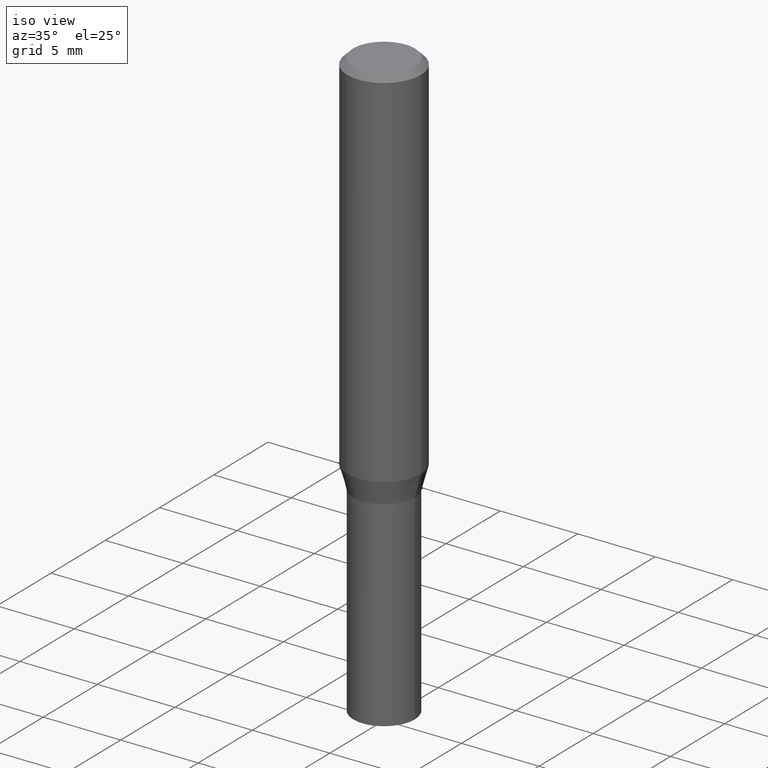
[diagram: clean part render]
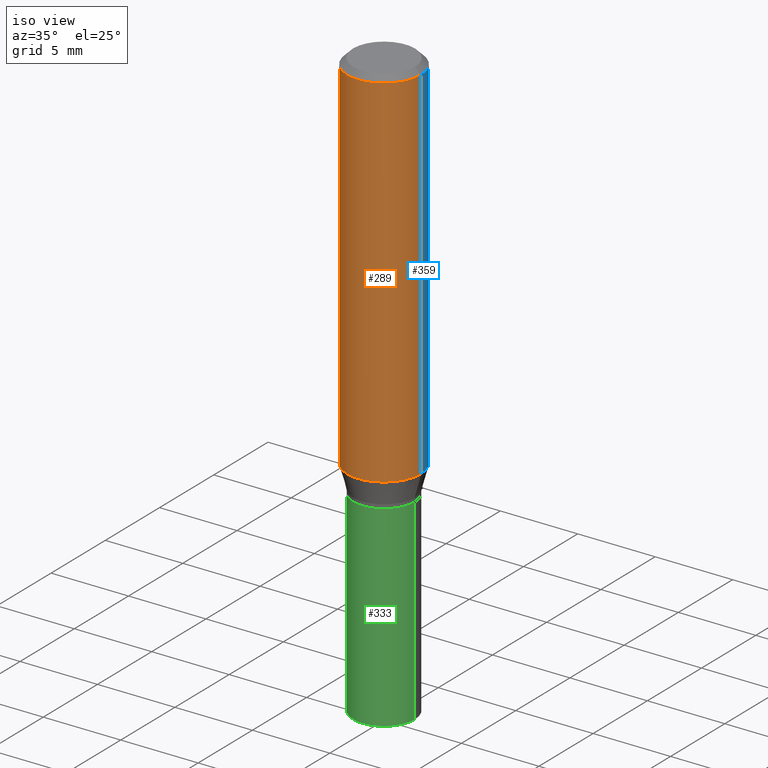
[diagram: same view with three faces highlighted in distinct colors, each labeled with its STEP entity id]
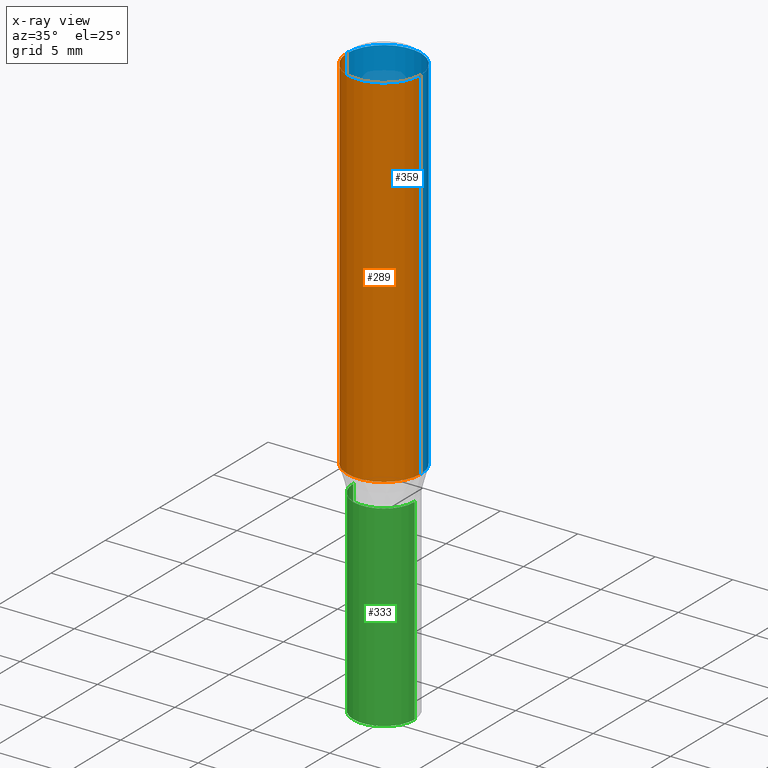
[diagram: x-ray of the same camera — body ghosted, the three highlighted faces saturated]
A machine part, iso view with three faces highlighted in distinct colors.
The next image is the same camera in x-ray (body ghosted, the three faces saturated) — at least one of them is partly hidden behind the body in this view.
Their STEP definitions:

[orange] entity #289 — the highlighted cylindrical surface (partial cylindrical patch) has radius 2.3813 mm, axis along (-0, 0, 1).
#49 = VERTEX_POINT ( 'NONE', #57 ) ;
#51 = ORIENTED_EDGE ( 'NONE', *, *, #454, .F. ) ;
#56 = EDGE_CURVE ( 'NONE', #402, #337, #162, .T. ) ;
#57 = CARTESIAN_POINT ( 'NONE',  ( 0.09375000000000001388, -3.907293739496527425E-15, -0.9315934048615475138 ) ) ;
#58 = LINE ( 'NONE', #206, #111 ) ;
#60 = FACE_OUTER_BOUND ( 'NONE', #113, .T. ) ;
#64 = CARTESIAN_POINT ( 'NONE',  ( 2.278182611636715174E-29, -3.252640988463440710E-15, -0.9315934048615475138 ) ) ;
#94 = AXIS2_PLACEMENT_3D ( 'NONE', #64, #358, #121 ) ;
#111 = VECTOR ( 'NONE', #211, 39.37007874015748143 ) ;
#113 = EDGE_LOOP ( 'NONE', ( #51, #264, #445, #449 ) ) ;
#121 = DIRECTION ( 'NONE',  ( 1.000000000000000000, -6.982962677686266711E-15, 0.000000000000000000 ) ) ;
#143 = CARTESIAN_POINT ( 'NONE',  ( -0.09375000000000001388, 6.661338147750940229E-16, -4.611501647113973995E-30 ) ) ;
#147 = DIRECTION ( 'NONE',  ( -2.445468806185136877E-29, 3.491481338843145188E-15, 1.000000000000000000 ) ) ;
#162 = CIRCLE ( 'NONE', #455, 0.09375000000000001388 ) ;
#169 = CARTESIAN_POINT ( 'NONE',  ( 0.000000000000000000, 0.000000000000000000, 0.000000000000000000 ) ) ;
#173 = LINE ( 'NONE', #143, #441 ) ;
#179 = DIRECTION ( 'NONE',  ( -2.445468806185136597E-29, 3.491481338843145583E-15, 1.000000000000000000 ) ) ;
#206 = CARTESIAN_POINT ( 'NONE',  ( 0.09375000000000001388, -6.546527510330875041E-16, 4.571415727308690506E-30 ) ) ;
#209 = DIRECTION ( 'NONE',  ( 1.000000000000000000, -6.982962677686265922E-15, 0.000000000000000000 ) ) ;
#211 = DIRECTION ( 'NONE',  ( -2.445468806185136877E-29, 3.491481338843145188E-15, 1.000000000000000000 ) ) ;
#212 = CARTESIAN_POINT ( 'NONE',  ( 0.09375000000000001388, -7.070249711157346819E-16, -0.01499999999999999944 ) ) ;
#214 = DIRECTION ( 'NONE',  ( -2.445468806185136597E-29, 3.491481338843145583E-15, 1.000000000000000000 ) ) ;
#245 = CARTESIAN_POINT ( 'NONE',  ( 3.668203209277705088E-31, -5.237222008264718399E-17, -0.01499999999999999944 ) ) ;
#264 = ORIENTED_EDGE ( 'NONE', *, *, #330, .T. ) ;
#273 = CARTESIAN_POINT ( 'NONE',  ( -0.09375000000000001388, -2.586507173688346391E-15, -0.9315934048615475138 ) ) ;
#287 = DIRECTION ( 'NONE',  ( 1.000000000000000000, -6.982962677686265922E-15, 4.876176775795935793E-29 ) ) ;
#289 = ADVANCED_FACE ( 'NONE', ( #60 ), #321, .T. ) ;
#303 = CIRCLE ( 'NONE', #94, 0.09375000000000001388 ) ;
#321 = CYLINDRICAL_SURFACE ( 'NONE', #366, 0.09375000000000001388 ) ;
#330 = EDGE_CURVE ( 'NONE', #413, #49, #303, .T. ) ;
#337 = VERTEX_POINT ( 'NONE', #212 ) ;
#358 = DIRECTION ( 'NONE',  ( -2.445468806185136597E-29, 3.491481338843145583E-15, 1.000000000000000000 ) ) ;
#364 = EDGE_CURVE ( 'NONE', #49, #337, #58, .T. ) ;
#366 = AXIS2_PLACEMENT_3D ( 'NONE', #169, #214, #287 ) ;
#402 = VERTEX_POINT ( 'NONE', #459 ) ;
#413 = VERTEX_POINT ( 'NONE', #273 ) ;
#441 = VECTOR ( 'NONE', #147, 39.37007874015748143 ) ;
#445 = ORIENTED_EDGE ( 'NONE', *, *, #364, .T. ) ;
#449 = ORIENTED_EDGE ( 'NONE', *, *, #56, .F. ) ;
#454 = EDGE_CURVE ( 'NONE', #413, #402, #173, .T. ) ;
#455 = AXIS2_PLACEMENT_3D ( 'NONE', #245, #179, #209 ) ;
#459 = CARTESIAN_POINT ( 'NONE',  ( -0.09375000000000001388, -9.863727894979499703E-16, -0.01499999999999999944 ) ) ;

[blue] entity #359 — the highlighted cylindrical surface (partial cylindrical patch) has radius 2.3813 mm, axis along (-0, 0, 1).
#3 = DIRECTION ( 'NONE',  ( 1.000000000000000000, -6.982962677686265922E-15, 0.000000000000000000 ) ) ;
#49 = VERTEX_POINT ( 'NONE', #57 ) ;
#54 = DIRECTION ( 'NONE',  ( -2.445468806185136597E-29, 3.491481338843145583E-15, 1.000000000000000000 ) ) ;
#57 = CARTESIAN_POINT ( 'NONE',  ( 0.09375000000000001388, -3.907293739496527425E-15, -0.9315934048615475138 ) ) ;
#58 = LINE ( 'NONE', #206, #111 ) ;
#72 = CIRCLE ( 'NONE', #342, 0.09375000000000001388 ) ;
#111 = VECTOR ( 'NONE', #211, 39.37007874015748143 ) ;
#112 = ORIENTED_EDGE ( 'NONE', *, *, #331, .T. ) ;
#130 = CARTESIAN_POINT ( 'NONE',  ( 0.000000000000000000, 0.000000000000000000, 0.000000000000000000 ) ) ;
#143 = CARTESIAN_POINT ( 'NONE',  ( -0.09375000000000001388, 6.661338147750940229E-16, -4.611501647113973995E-30 ) ) ;
#147 = DIRECTION ( 'NONE',  ( -2.445468806185136877E-29, 3.491481338843145188E-15, 1.000000000000000000 ) ) ;
#173 = LINE ( 'NONE', #143, #441 ) ;
#181 = ORIENTED_EDGE ( 'NONE', *, *, #204, .F. ) ;
#184 = CARTESIAN_POINT ( 'NONE',  ( 3.668203209277705088E-31, -5.237222008264718399E-17, -0.01499999999999999944 ) ) ;
#204 = EDGE_CURVE ( 'NONE', #337, #402, #285, .T. ) ;
#206 = CARTESIAN_POINT ( 'NONE',  ( 0.09375000000000001388, -6.546527510330875041E-16, 4.571415727308690506E-30 ) ) ;
#211 = DIRECTION ( 'NONE',  ( -2.445468806185136877E-29, 3.491481338843145188E-15, 1.000000000000000000 ) ) ;
#212 = CARTESIAN_POINT ( 'NONE',  ( 0.09375000000000001388, -7.070249711157346819E-16, -0.01499999999999999944 ) ) ;
#236 = DIRECTION ( 'NONE',  ( -2.445468806185136597E-29, 3.491481338843145583E-15, 1.000000000000000000 ) ) ;
#238 = CYLINDRICAL_SURFACE ( 'NONE', #378, 0.09375000000000001388 ) ;
#262 = EDGE_LOOP ( 'NONE', ( #112, #461, #181, #405 ) ) ;
#273 = CARTESIAN_POINT ( 'NONE',  ( -0.09375000000000001388, -2.586507173688346391E-15, -0.9315934048615475138 ) ) ;
#276 = CARTESIAN_POINT ( 'NONE',  ( 2.278182611636715174E-29, -3.252640988463440710E-15, -0.9315934048615475138 ) ) ;
#285 = CIRCLE ( 'NONE', #372, 0.09375000000000001388 ) ;
#313 = FACE_OUTER_BOUND ( 'NONE', #262, .T. ) ;
#331 = EDGE_CURVE ( 'NONE', #49, #413, #72, .T. ) ;
#334 = DIRECTION ( 'NONE',  ( -2.445468806185136597E-29, 3.491481338843145583E-15, 1.000000000000000000 ) ) ;
#337 = VERTEX_POINT ( 'NONE', #212 ) ;
#342 = AXIS2_PLACEMENT_3D ( 'NONE', #276, #236, #349 ) ;
#349 = DIRECTION ( 'NONE',  ( 1.000000000000000000, -6.982962677686266711E-15, 0.000000000000000000 ) ) ;
#359 = ADVANCED_FACE ( 'NONE', ( #313 ), #238, .T. ) ;
#364 = EDGE_CURVE ( 'NONE', #49, #337, #58, .T. ) ;
#372 = AXIS2_PLACEMENT_3D ( 'NONE', #184, #334, #3 ) ;
#378 = AXIS2_PLACEMENT_3D ( 'NONE', #130, #54, #390 ) ;
#390 = DIRECTION ( 'NONE',  ( 1.000000000000000000, -6.982962677686265922E-15, 4.876176775795935793E-29 ) ) ;
#402 = VERTEX_POINT ( 'NONE', #459 ) ;
#405 = ORIENTED_EDGE ( 'NONE', *, *, #364, .F. ) ;
#413 = VERTEX_POINT ( 'NONE', #273 ) ;
#441 = VECTOR ( 'NONE', #147, 39.37007874015748143 ) ;
#454 = EDGE_CURVE ( 'NONE', #413, #402, #173, .T. ) ;
#459 = CARTESIAN_POINT ( 'NONE',  ( -0.09375000000000001388, -9.863727894979499703E-16, -0.01499999999999999944 ) ) ;
#461 = ORIENTED_EDGE ( 'NONE', *, *, #454, .T. ) ;

[green] entity #333 — the highlighted cylindrical surface (partial cylindrical patch) has radius 1.9837 mm, axis along (-0, 0, 1).
#5 = VERTEX_POINT ( 'NONE', #394 ) ;
#9 = CIRCLE ( 'NONE', #368, 0.07810000000000000275 ) ;
#21 = ORIENTED_EDGE ( 'NONE', *, *, #399, .F. ) ;
#26 = LINE ( 'NONE', #92, #189 ) ;
#52 = CARTESIAN_POINT ( 'NONE',  ( 3.668203209277704895E-29, -5.237222008264718177E-15, -1.500000000000000222 ) ) ;
#70 = DIRECTION ( 'NONE',  ( -2.445468806185136597E-29, 3.491481338843145583E-15, 1.000000000000000000 ) ) ;
#73 = CARTESIAN_POINT ( 'NONE',  ( 0.07810000000000000275, -4.036850723970443413E-15, -1.000000000000000222 ) ) ;
#88 = DIRECTION ( 'NONE',  ( 1.000000000000000000, -6.982962677686266711E-15, 0.000000000000000000 ) ) ;
#92 = CARTESIAN_POINT ( 'NONE',  ( -0.07810000000000000275, 5.549338766286382647E-16, -3.841688305489081275E-30 ) ) ;
#96 = DIRECTION ( 'NONE',  ( -2.445468806185136597E-29, 3.491481338843145583E-15, 1.000000000000000000 ) ) ;
#106 = DIRECTION ( 'NONE',  ( 1.000000000000000000, -6.982962677686266711E-15, 0.000000000000000000 ) ) ;
#126 = FACE_OUTER_BOUND ( 'NONE', #271, .T. ) ;
#135 = CARTESIAN_POINT ( 'NONE',  ( 0.07810000000000000275, -5.453693851272974364E-16, 3.808294061896625703E-30 ) ) ;
#139 = AXIS2_PLACEMENT_3D ( 'NONE', #52, #96, #88 ) ;
#151 = VERTEX_POINT ( 'NONE', #73 ) ;
#166 = VERTEX_POINT ( 'NONE', #362 ) ;
#168 = CYLINDRICAL_SURFACE ( 'NONE', #260, 0.07810000000000000275 ) ;
#177 = LINE ( 'NONE', #135, #379 ) ;
#189 = VECTOR ( 'NONE', #356, 39.37007874015748143 ) ;
#203 = DIRECTION ( 'NONE',  ( 1.000000000000000000, -6.982962677686266711E-15, 4.876176775795935232E-29 ) ) ;
#208 = EDGE_CURVE ( 'NONE', #5, #151, #9, .T. ) ;
#256 = ORIENTED_EDGE ( 'NONE', *, *, #433, .T. ) ;
#257 = VERTEX_POINT ( 'NONE', #444 ) ;
#260 = AXIS2_PLACEMENT_3D ( 'NONE', #386, #462, #203 ) ;
#261 = CIRCLE ( 'NONE', #139, 0.07810000000000000275 ) ;
#269 = ORIENTED_EDGE ( 'NONE', *, *, #208, .F. ) ;
#271 = EDGE_LOOP ( 'NONE', ( #21, #256, #438, #269 ) ) ;
#333 = ADVANCED_FACE ( 'NONE', ( #126 ), #168, .T. ) ;
#356 = DIRECTION ( 'NONE',  ( -2.445468806185136877E-29, 3.491481338843145188E-15, 1.000000000000000000 ) ) ;
#362 = CARTESIAN_POINT ( 'NONE',  ( -0.07810000000000000275, -3.809417796925293812E-15, -1.500000000000000222 ) ) ;
#368 = AXIS2_PLACEMENT_3D ( 'NONE', #435, #70, #106 ) ;
#379 = VECTOR ( 'NONE', #419, 39.37007874015748143 ) ;
#386 = CARTESIAN_POINT ( 'NONE',  ( 0.000000000000000000, 0.000000000000000000, 0.000000000000000000 ) ) ;
#393 = EDGE_CURVE ( 'NONE', #257, #151, #177, .T. ) ;
#394 = CARTESIAN_POINT ( 'NONE',  ( -0.07810000000000000275, -3.809417796925293812E-15, -1.000000000000000222 ) ) ;
#399 = EDGE_CURVE ( 'NONE', #166, #5, #26, .T. ) ;
#419 = DIRECTION ( 'NONE',  ( -2.445468806185136877E-29, 3.491481338843145188E-15, 1.000000000000000000 ) ) ;
#433 = EDGE_CURVE ( 'NONE', #166, #257, #261, .T. ) ;
#435 = CARTESIAN_POINT ( 'NONE',  ( 2.445468806185136877E-29, -3.491481338843145977E-15, -1.000000000000000222 ) ) ;
#438 = ORIENTED_EDGE ( 'NONE', *, *, #393, .T. ) ;
#444 = CARTESIAN_POINT ( 'NONE',  ( 0.07810000000000000275, -5.782591393392015613E-15, -1.500000000000000222 ) ) ;
#462 = DIRECTION ( 'NONE',  ( -2.445468806185136597E-29, 3.491481338843145583E-15, 1.000000000000000000 ) ) ;